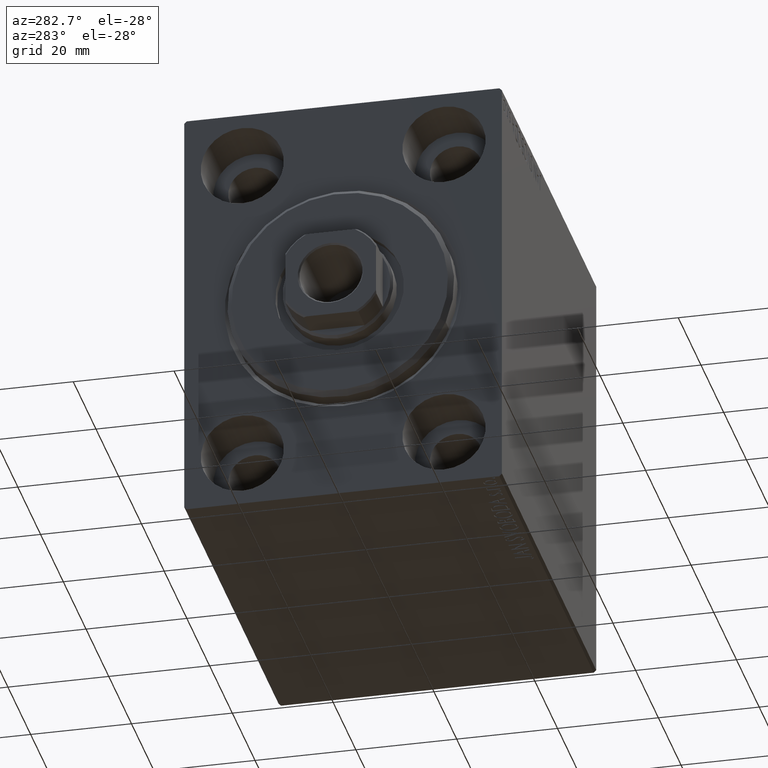
[diagram: clean part render]
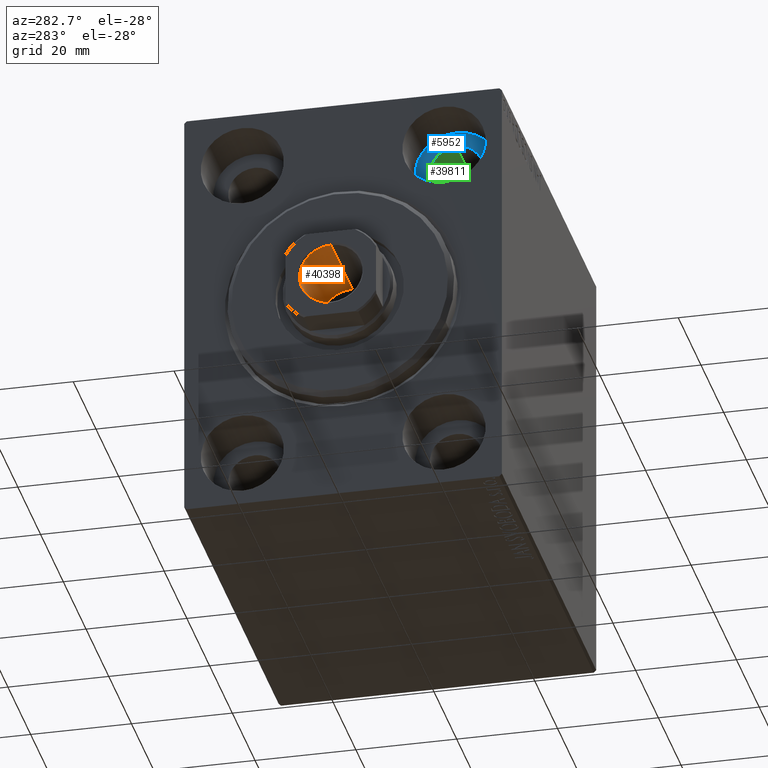
[diagram: same view with three faces highlighted in distinct colors, each labeled with its STEP entity id]
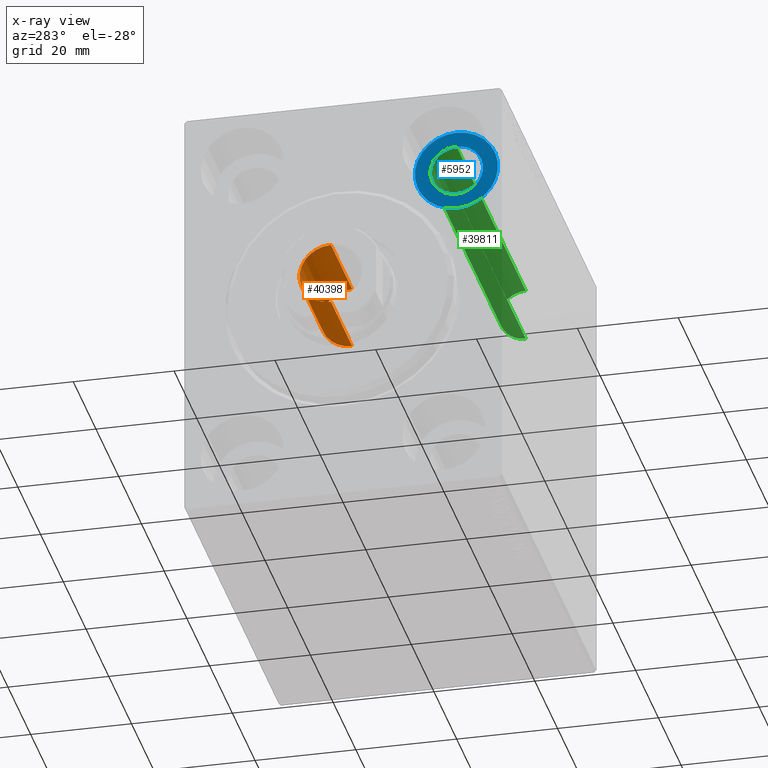
[diagram: x-ray of the same camera — body ghosted, the three highlighted faces saturated]
A machine part, auxiliary view with three faces highlighted in distinct colors.
The next image is the same camera in x-ray (body ghosted, the three faces saturated) — at least one of them is partly hidden behind the body in this view.
Their STEP definitions:

[orange] entity #40398 — the highlighted cylindrical surface (edge-blend (fillet) strip) has radius 6.25 mm, axis along (-1, 0, 0).
#350 = CARTESIAN_POINT ( 'NONE',  ( 0.000000000000000000, 0.000000000000000000, 61.70000000000000995 ) ) ;
#901 = CARTESIAN_POINT ( 'NONE',  ( 6.249999999999996447, 0.000000000000000000, 61.70000000000000995 ) ) ;
#1597 = DIRECTION ( 'NONE',  ( -0.000000000000000000, -0.000000000000000000, 1.000000000000000000 ) ) ;
#3212 = ORIENTED_EDGE ( 'NONE', *, *, #16285, .F. ) ;
#4310 = DIRECTION ( 'NONE',  ( 1.000000000000000000, 0.000000000000000000, 0.000000000000000000 ) ) ;
#5206 = VECTOR ( 'NONE', #32458, 1000.000000000000000 ) ;
#6548 = DIRECTION ( 'NONE',  ( 0.000000000000000000, 0.000000000000000000, 1.000000000000000000 ) ) ;
#7049 = AXIS2_PLACEMENT_3D ( 'NONE', #24610, #1597, #38107 ) ;
#10371 = AXIS2_PLACEMENT_3D ( 'NONE', #350, #6548, #40604 ) ;
#11104 = CYLINDRICAL_SURFACE ( 'NONE', #7049, 6.249999999999996447 ) ;
#16079 = VERTEX_POINT ( 'NONE', #43504 ) ;
#16285 = EDGE_CURVE ( 'NONE', #34605, #16079, #30012, .T. ) ;
#16315 = ORIENTED_EDGE ( 'NONE', *, *, #25164, .T. ) ;
#20393 = VERTEX_POINT ( 'NONE', #901 ) ;
#20660 = CARTESIAN_POINT ( 'NONE',  ( 0.000000000000000000, 0.000000000000000000, 43.00000000000000000 ) ) ;
#21064 = FACE_OUTER_BOUND ( 'NONE', #41735, .T. ) ;
#21497 = EDGE_CURVE ( 'NONE', #29615, #20393, #22495, .T. ) ;
#22052 = CARTESIAN_POINT ( 'NONE',  ( 6.249999999999996447, 0.000000000000000000, 61.99999999999999289 ) ) ;
#22495 = LINE ( 'NONE', #22052, #42044 ) ;
#23828 = AXIS2_PLACEMENT_3D ( 'NONE', #20660, #34615, #4310 ) ;
#24610 = CARTESIAN_POINT ( 'NONE',  ( 0.000000000000000000, 0.000000000000000000, 61.99999999999999289 ) ) ;
#25164 = EDGE_CURVE ( 'NONE', #20393, #16079, #38616, .T. ) ;
#28767 = CARTESIAN_POINT ( 'NONE',  ( -6.249999999999995559, 7.654042494670950704E-16, 43.00000000000000000 ) ) ;
#29291 = ORIENTED_EDGE ( 'NONE', *, *, #31012, .F. ) ;
#29358 = CARTESIAN_POINT ( 'NONE',  ( -6.249999999999996447, 7.654042494670952676E-16, 61.99999999999999289 ) ) ;
#29615 = VERTEX_POINT ( 'NONE', #33207 ) ;
#30012 = LINE ( 'NONE', #29358, #5206 ) ;
#31012 = EDGE_CURVE ( 'NONE', #29615, #34605, #37256, .T. ) ;
#32458 = DIRECTION ( 'NONE',  ( -0.000000000000000000, -0.000000000000000000, 1.000000000000000000 ) ) ;
#33207 = CARTESIAN_POINT ( 'NONE',  ( 6.249999999999995559, 0.000000000000000000, 43.00000000000000000 ) ) ;
#34605 = VERTEX_POINT ( 'NONE', #28767 ) ;
#34615 = DIRECTION ( 'NONE',  ( -0.000000000000000000, -0.000000000000000000, 1.000000000000000000 ) ) ;
#37256 = CIRCLE ( 'NONE', #23828, 6.249999999999995559 ) ;
#38107 = DIRECTION ( 'NONE',  ( 1.000000000000000000, 0.000000000000000000, 0.000000000000000000 ) ) ;
#38616 = CIRCLE ( 'NONE', #10371, 6.249999999999996447 ) ;
#40398 = ADVANCED_FACE ( 'NONE', ( #21064 ), #11104, .F. ) ;
#40604 = DIRECTION ( 'NONE',  ( 1.000000000000000000, 0.000000000000000000, 0.000000000000000000 ) ) ;
#40612 = ORIENTED_EDGE ( 'NONE', *, *, #21497, .T. ) ;
#41735 = EDGE_LOOP ( 'NONE', ( #3212, #29291, #40612, #16315 ) ) ;
#42044 = VECTOR ( 'NONE', #42625, 1000.000000000000000 ) ;
#42625 = DIRECTION ( 'NONE',  ( -0.000000000000000000, -0.000000000000000000, 1.000000000000000000 ) ) ;
#43504 = CARTESIAN_POINT ( 'NONE',  ( -6.249999999999996447, 7.654042494670952676E-16, 61.70000000000000995 ) ) ;

[blue] entity #5952 — the highlighted planar face has unit normal (-1, 0, 0).
#2529 = DIRECTION ( 'NONE',  ( -1.000000000000000000, 0.000000000000000000, 0.000000000000000000 ) ) ;
#2744 = PLANE ( 'NONE',  #22704 ) ;
#5952 = ADVANCED_FACE ( 'NONE', ( #23291, #39690 ), #2744, .T. ) ;
#6483 = CARTESIAN_POINT ( 'NONE',  ( 11.00000000000000000, 0.000000000000000000, 0.000000000000000000 ) ) ;
#6988 = VERTEX_POINT ( 'NONE', #10666 ) ;
#7761 = CIRCLE ( 'NONE', #41663, 5.249999999999997335 ) ;
#7864 = DIRECTION ( 'NONE',  ( -1.000000000000000000, 0.000000000000000000, 0.000000000000000000 ) ) ;
#10539 = VERTEX_POINT ( 'NONE', #12029 ) ;
#10666 = CARTESIAN_POINT ( 'NONE',  ( 11.00000000000000000, -19.99999999999999645, 23.25000000000000355 ) ) ;
#10730 = CARTESIAN_POINT ( 'NONE',  ( 10.99999999999999645, -19.99999999999999645, 31.50000000000000000 ) ) ;
#11021 = ORIENTED_EDGE ( 'NONE', *, *, #25104, .T. ) ;
#11048 = DIRECTION ( 'NONE',  ( -1.000000000000000000, 0.000000000000000000, 0.000000000000000000 ) ) ;
#11106 = DIRECTION ( 'NONE',  ( -1.000000000000000000, 0.000000000000000000, 0.000000000000000000 ) ) ;
#11219 = ORIENTED_EDGE ( 'NONE', *, *, #40643, .F. ) ;
#12029 = CARTESIAN_POINT ( 'NONE',  ( 10.99999999999999645, -19.99999999999999645, 26.25000000000000355 ) ) ;
#12499 = AXIS2_PLACEMENT_3D ( 'NONE', #39151, #25003, #14612 ) ;
#14612 = DIRECTION ( 'NONE',  ( 0.000000000000000000, 0.000000000000000000, 1.000000000000000000 ) ) ;
#18876 = CIRCLE ( 'NONE', #33721, 5.249999999999997335 ) ;
#19849 = VERTEX_POINT ( 'NONE', #30376 ) ;
#20042 = EDGE_LOOP ( 'NONE', ( #25042, #11219 ) ) ;
#21350 = DIRECTION ( 'NONE',  ( 0.000000000000000000, 0.000000000000000000, 1.000000000000000000 ) ) ;
#22704 = AXIS2_PLACEMENT_3D ( 'NONE', #6483, #2529, #43211 ) ;
#23291 = FACE_BOUND ( 'NONE', #20042, .T. ) ;
#25003 = DIRECTION ( 'NONE',  ( -1.000000000000000000, 0.000000000000000000, 0.000000000000000000 ) ) ;
#25042 = ORIENTED_EDGE ( 'NONE', *, *, #25406, .F. ) ;
#25104 = EDGE_CURVE ( 'NONE', #6988, #19849, #41448, .T. ) ;
#25406 = EDGE_CURVE ( 'NONE', #40087, #10539, #18876, .T. ) ;
#28755 = AXIS2_PLACEMENT_3D ( 'NONE', #38330, #11106, #34346 ) ;
#29268 = EDGE_CURVE ( 'NONE', #19849, #6988, #40067, .T. ) ;
#30376 = CARTESIAN_POINT ( 'NONE',  ( 11.00000000000000000, -19.99999999999999645, 39.74999999999999289 ) ) ;
#33471 = EDGE_LOOP ( 'NONE', ( #38342, #11021 ) ) ;
#33721 = AXIS2_PLACEMENT_3D ( 'NONE', #10730, #7864, #21350 ) ;
#34346 = DIRECTION ( 'NONE',  ( 0.000000000000000000, 0.000000000000000000, 1.000000000000000000 ) ) ;
#38330 = CARTESIAN_POINT ( 'NONE',  ( 11.00000000000000000, -19.99999999999999645, 31.50000000000000000 ) ) ;
#38342 = ORIENTED_EDGE ( 'NONE', *, *, #29268, .T. ) ;
#38489 = DIRECTION ( 'NONE',  ( 0.000000000000000000, 0.000000000000000000, 1.000000000000000000 ) ) ;
#39151 = CARTESIAN_POINT ( 'NONE',  ( 11.00000000000000000, -19.99999999999999645, 31.50000000000000000 ) ) ;
#39690 = FACE_OUTER_BOUND ( 'NONE', #33471, .T. ) ;
#40067 = CIRCLE ( 'NONE', #28755, 8.249999999999992895 ) ;
#40087 = VERTEX_POINT ( 'NONE', #43533 ) ;
#40643 = EDGE_CURVE ( 'NONE', #10539, #40087, #7761, .T. ) ;
#41360 = CARTESIAN_POINT ( 'NONE',  ( 10.99999999999999645, -19.99999999999999645, 31.50000000000000000 ) ) ;
#41448 = CIRCLE ( 'NONE', #12499, 8.249999999999992895 ) ;
#41663 = AXIS2_PLACEMENT_3D ( 'NONE', #41360, #11048, #38489 ) ;
#43211 = DIRECTION ( 'NONE',  ( 0.000000000000000000, 0.000000000000000000, 1.000000000000000000 ) ) ;
#43533 = CARTESIAN_POINT ( 'NONE',  ( 10.99999999999999645, -19.99999999999999645, 36.75000000000000000 ) ) ;

[green] entity #39811 — the highlighted cylindrical surface (edge-blend (fillet) strip) has radius 5.25 mm, axis along (-1, -0, -0).
#1201 = LINE ( 'NONE', #38570, #22505 ) ;
#2180 = ORIENTED_EDGE ( 'NONE', *, *, #28231, .T. ) ;
#4936 = DIRECTION ( 'NONE',  ( -1.000000000000000000, -0.000000000000000000, -0.000000000000000000 ) ) ;
#6111 = VECTOR ( 'NONE', #39467, 1000.000000000000000 ) ;
#7864 = DIRECTION ( 'NONE',  ( -1.000000000000000000, 0.000000000000000000, 0.000000000000000000 ) ) ;
#7876 = FACE_OUTER_BOUND ( 'NONE', #16524, .T. ) ;
#8571 = DIRECTION ( 'NONE',  ( 0.000000000000000000, 0.000000000000000000, -1.000000000000000000 ) ) ;
#9839 = CIRCLE ( 'NONE', #12687, 5.249999999999997335 ) ;
#10539 = VERTEX_POINT ( 'NONE', #12029 ) ;
#10730 = CARTESIAN_POINT ( 'NONE',  ( 10.99999999999999645, -19.99999999999999645, 31.50000000000000000 ) ) ;
#12029 = CARTESIAN_POINT ( 'NONE',  ( 10.99999999999999645, -19.99999999999999645, 26.25000000000000355 ) ) ;
#12687 = AXIS2_PLACEMENT_3D ( 'NONE', #17898, #35354, #8571 ) ;
#14518 = CARTESIAN_POINT ( 'NONE',  ( 83.00000000000000000, -19.99999999999999645, 31.50000000000000000 ) ) ;
#14866 = VERTEX_POINT ( 'NONE', #22054 ) ;
#16062 = ORIENTED_EDGE ( 'NONE', *, *, #35347, .F. ) ;
#16524 = EDGE_LOOP ( 'NONE', ( #16062, #33552, #2180, #39706 ) ) ;
#17898 = CARTESIAN_POINT ( 'NONE',  ( 72.00000000000001421, -19.99999999999999645, 31.50000000000000000 ) ) ;
#18876 = CIRCLE ( 'NONE', #33721, 5.249999999999997335 ) ;
#21350 = DIRECTION ( 'NONE',  ( 0.000000000000000000, 0.000000000000000000, 1.000000000000000000 ) ) ;
#22054 = CARTESIAN_POINT ( 'NONE',  ( 72.00000000000001421, -19.99999999999999645, 26.25000000000000355 ) ) ;
#22424 = CARTESIAN_POINT ( 'NONE',  ( 83.00000000000000000, -19.99999999999999645, 36.75000000000000000 ) ) ;
#22505 = VECTOR ( 'NONE', #4936, 1000.000000000000000 ) ;
#25121 = DIRECTION ( 'NONE',  ( 0.000000000000000000, 0.000000000000000000, 1.000000000000000000 ) ) ;
#25406 = EDGE_CURVE ( 'NONE', #40087, #10539, #18876, .T. ) ;
#26367 = CARTESIAN_POINT ( 'NONE',  ( 72.00000000000001421, -19.99999999999999645, 36.75000000000000000 ) ) ;
#28004 = DIRECTION ( 'NONE',  ( -1.000000000000000000, -0.000000000000000000, -0.000000000000000000 ) ) ;
#28231 = EDGE_CURVE ( 'NONE', #38137, #40087, #29722, .T. ) ;
#29722 = LINE ( 'NONE', #22424, #6111 ) ;
#32495 = AXIS2_PLACEMENT_3D ( 'NONE', #14518, #28004, #25121 ) ;
#33552 = ORIENTED_EDGE ( 'NONE', *, *, #38780, .F. ) ;
#33721 = AXIS2_PLACEMENT_3D ( 'NONE', #10730, #7864, #21350 ) ;
#35347 = EDGE_CURVE ( 'NONE', #14866, #10539, #1201, .T. ) ;
#35354 = DIRECTION ( 'NONE',  ( -1.000000000000000000, -0.000000000000000000, -0.000000000000000000 ) ) ;
#38137 = VERTEX_POINT ( 'NONE', #26367 ) ;
#38406 = CYLINDRICAL_SURFACE ( 'NONE', #32495, 5.249999999999997335 ) ;
#38570 = CARTESIAN_POINT ( 'NONE',  ( 83.00000000000000000, -19.99999999999999645, 26.25000000000000355 ) ) ;
#38780 = EDGE_CURVE ( 'NONE', #38137, #14866, #9839, .T. ) ;
#39467 = DIRECTION ( 'NONE',  ( -1.000000000000000000, -0.000000000000000000, -0.000000000000000000 ) ) ;
#39706 = ORIENTED_EDGE ( 'NONE', *, *, #25406, .T. ) ;
#39811 = ADVANCED_FACE ( 'NONE', ( #7876 ), #38406, .F. ) ;
#40087 = VERTEX_POINT ( 'NONE', #43533 ) ;
#43533 = CARTESIAN_POINT ( 'NONE',  ( 10.99999999999999645, -19.99999999999999645, 36.75000000000000000 ) ) ;